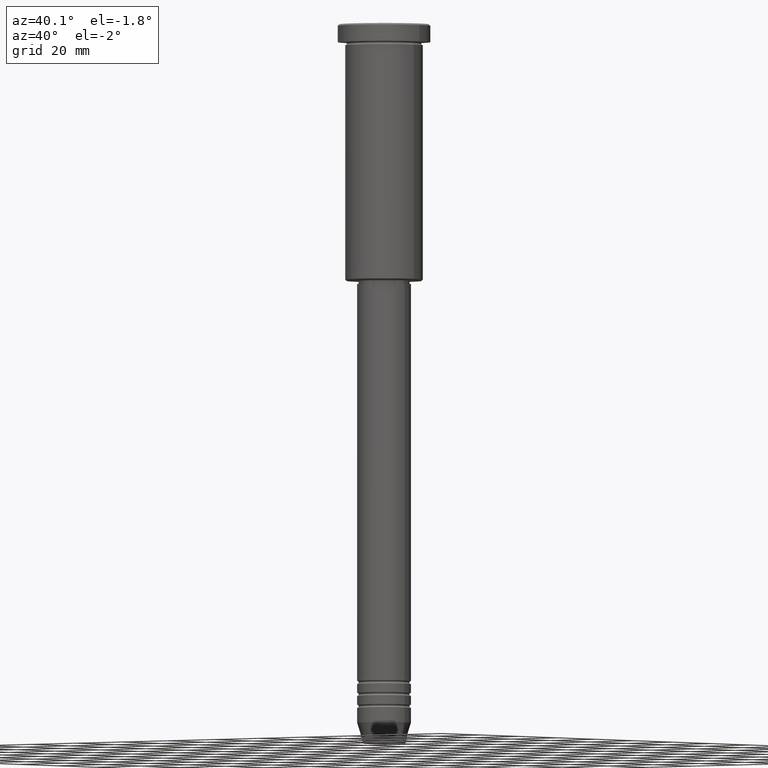
[diagram: clean part render]
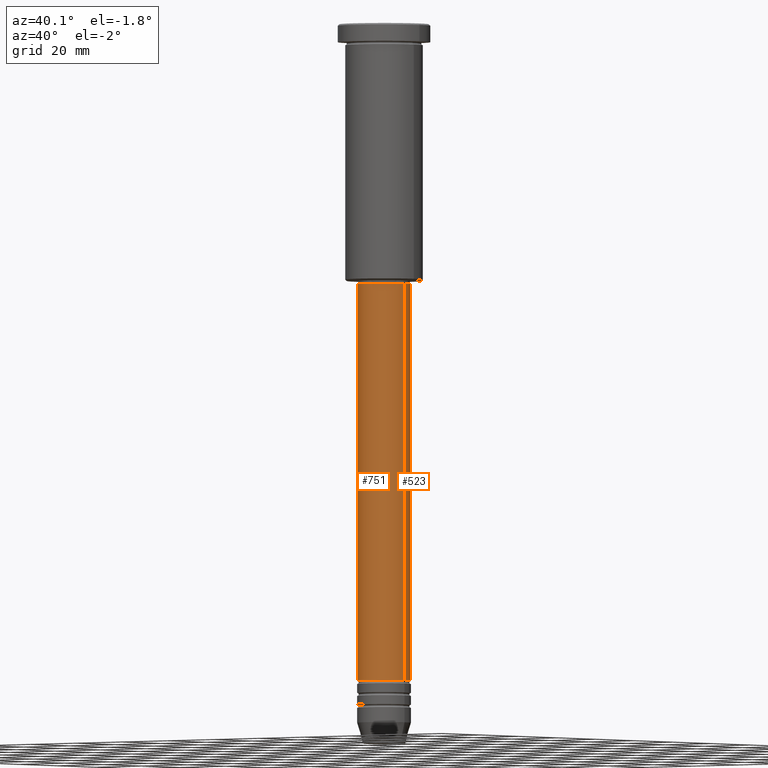
[diagram: same view with one multi-face feature highlighted, each face labeled with its STEP entity id]
A machine part, auxiliary view. The highlighted faces form ONE feature: a constant-radius fillet chain: 2 tangent blend faces with common blend radius 9 mm. The faces share edges in the B-rep.
Their STEP definitions:
[1] entity #523 (Cylinder):
#32 = DIRECTION ( 'NONE',  ( -0.000000000000000000, -0.000000000000000000, 1.000000000000000000 ) ) ;
#41 = VERTEX_POINT ( 'NONE', #276 ) ;
#57 = DIRECTION ( 'NONE',  ( 1.000000000000000000, 0.000000000000000000, 0.000000000000000000 ) ) ;
#146 = ORIENTED_EDGE ( 'NONE', *, *, #773, .T. ) ;
#157 = AXIS2_PLACEMENT_3D ( 'NONE', #580, #32, #57 ) ;
#164 = DIRECTION ( 'NONE',  ( 1.000000000000000000, 0.000000000000000000, 0.000000000000000000 ) ) ;
#175 = VECTOR ( 'NONE', #1123, 1000.000000000000000 ) ;
#183 = DIRECTION ( 'NONE',  ( -0.000000000000000000, -0.000000000000000000, 1.000000000000000000 ) ) ;
#211 = ORIENTED_EDGE ( 'NONE', *, *, #622, .F. ) ;
#244 = DIRECTION ( 'NONE',  ( -0.000000000000000000, -0.000000000000000000, 1.000000000000000000 ) ) ;
#256 = CARTESIAN_POINT ( 'NONE',  ( 8.999999999999998224, 0.000000000000000000, -87.00000000000002842 ) ) ;
#276 = CARTESIAN_POINT ( 'NONE',  ( -9.000000000000001776, 1.102182119232617911E-15, -219.9999999999998863 ) ) ;
#305 = CARTESIAN_POINT ( 'NONE',  ( 9.000000000000000000, 0.000000000000000000, 0.000000000000000000 ) ) ;
#367 = AXIS2_PLACEMENT_3D ( 'NONE', #829, #1097, #164 ) ;
#447 = CYLINDRICAL_SURFACE ( 'NONE', #1112, 9.000000000000000000 ) ;
#474 = ORIENTED_EDGE ( 'NONE', *, *, #855, .T. ) ;
#504 = LINE ( 'NONE', #305, #175 ) ;
#523 = ADVANCED_FACE ( 'NONE', ( #526 ), #447, .T. ) ;
#526 = FACE_OUTER_BOUND ( 'NONE', #963, .T. ) ;
#555 = VERTEX_POINT ( 'NONE', #557 ) ;
#557 = CARTESIAN_POINT ( 'NONE',  ( -8.999999999999998224, 1.102182119232617714E-15, -87.00000000000002842 ) ) ;
#580 = CARTESIAN_POINT ( 'NONE',  ( 0.000000000000000000, 0.000000000000000000, -87.00000000000002842 ) ) ;
#595 = EDGE_CURVE ( 'NONE', #757, #555, #938, .T. ) ;
#622 = EDGE_CURVE ( 'NONE', #725, #757, #504, .T. ) ;
#725 = VERTEX_POINT ( 'NONE', #868 ) ;
#757 = VERTEX_POINT ( 'NONE', #256 ) ;
#773 = EDGE_CURVE ( 'NONE', #41, #555, #1104, .T. ) ;
#805 = VECTOR ( 'NONE', #183, 1000.000000000000000 ) ;
#829 = CARTESIAN_POINT ( 'NONE',  ( 0.000000000000000000, 0.000000000000000000, -219.9999999999998863 ) ) ;
#855 = EDGE_CURVE ( 'NONE', #725, #41, #1113, .T. ) ;
#868 = CARTESIAN_POINT ( 'NONE',  ( 9.000000000000001776, 0.000000000000000000, -219.9999999999998863 ) ) ;
#891 = DIRECTION ( 'NONE',  ( 1.000000000000000000, 0.000000000000000000, 0.000000000000000000 ) ) ;
#938 = CIRCLE ( 'NONE', #157, 8.999999999999998224 ) ;
#963 = EDGE_LOOP ( 'NONE', ( #474, #146, #1011, #211 ) ) ;
#1011 = ORIENTED_EDGE ( 'NONE', *, *, #595, .F. ) ;
#1073 = CARTESIAN_POINT ( 'NONE',  ( 0.000000000000000000, 0.000000000000000000, 0.000000000000000000 ) ) ;
#1097 = DIRECTION ( 'NONE',  ( -0.000000000000000000, -0.000000000000000000, 1.000000000000000000 ) ) ;
#1101 = CARTESIAN_POINT ( 'NONE',  ( -9.000000000000000000, 1.102182119232617714E-15, 0.000000000000000000 ) ) ;
#1104 = LINE ( 'NONE', #1101, #805 ) ;
#1112 = AXIS2_PLACEMENT_3D ( 'NONE', #1073, #244, #891 ) ;
#1113 = CIRCLE ( 'NONE', #367, 9.000000000000001776 ) ;
#1123 = DIRECTION ( 'NONE',  ( -0.000000000000000000, -0.000000000000000000, 1.000000000000000000 ) ) ;
[2] entity #751 (Cylinder):
#9 = FACE_OUTER_BOUND ( 'NONE', #1041, .T. ) ;
#12 = AXIS2_PLACEMENT_3D ( 'NONE', #743, #186, #176 ) ;
#25 = CARTESIAN_POINT ( 'NONE',  ( 0.000000000000000000, 0.000000000000000000, -87.00000000000002842 ) ) ;
#41 = VERTEX_POINT ( 'NONE', #276 ) ;
#175 = VECTOR ( 'NONE', #1123, 1000.000000000000000 ) ;
#176 = DIRECTION ( 'NONE',  ( 1.000000000000000000, 0.000000000000000000, 0.000000000000000000 ) ) ;
#180 = EDGE_CURVE ( 'NONE', #555, #757, #203, .T. ) ;
#183 = DIRECTION ( 'NONE',  ( -0.000000000000000000, -0.000000000000000000, 1.000000000000000000 ) ) ;
#186 = DIRECTION ( 'NONE',  ( -0.000000000000000000, -0.000000000000000000, 1.000000000000000000 ) ) ;
#203 = CIRCLE ( 'NONE', #782, 8.999999999999998224 ) ;
#256 = CARTESIAN_POINT ( 'NONE',  ( 8.999999999999998224, 0.000000000000000000, -87.00000000000002842 ) ) ;
#276 = CARTESIAN_POINT ( 'NONE',  ( -9.000000000000001776, 1.102182119232617911E-15, -219.9999999999998863 ) ) ;
#302 = DIRECTION ( 'NONE',  ( 1.000000000000000000, 0.000000000000000000, 0.000000000000000000 ) ) ;
#305 = CARTESIAN_POINT ( 'NONE',  ( 9.000000000000000000, 0.000000000000000000, 0.000000000000000000 ) ) ;
#439 = ORIENTED_EDGE ( 'NONE', *, *, #809, .T. ) ;
#461 = CARTESIAN_POINT ( 'NONE',  ( 0.000000000000000000, 0.000000000000000000, 0.000000000000000000 ) ) ;
#504 = LINE ( 'NONE', #305, #175 ) ;
#543 = DIRECTION ( 'NONE',  ( 1.000000000000000000, 0.000000000000000000, 0.000000000000000000 ) ) ;
#555 = VERTEX_POINT ( 'NONE', #557 ) ;
#557 = CARTESIAN_POINT ( 'NONE',  ( -8.999999999999998224, 1.102182119232617714E-15, -87.00000000000002842 ) ) ;
#622 = EDGE_CURVE ( 'NONE', #725, #757, #504, .T. ) ;
#725 = VERTEX_POINT ( 'NONE', #868 ) ;
#743 = CARTESIAN_POINT ( 'NONE',  ( 0.000000000000000000, 0.000000000000000000, -219.9999999999998863 ) ) ;
#751 = ADVANCED_FACE ( 'NONE', ( #9 ), #1006, .T. ) ;
#757 = VERTEX_POINT ( 'NONE', #256 ) ;
#773 = EDGE_CURVE ( 'NONE', #41, #555, #1104, .T. ) ;
#782 = AXIS2_PLACEMENT_3D ( 'NONE', #25, #1033, #302 ) ;
#790 = ORIENTED_EDGE ( 'NONE', *, *, #180, .F. ) ;
#805 = VECTOR ( 'NONE', #183, 1000.000000000000000 ) ;
#809 = EDGE_CURVE ( 'NONE', #41, #725, #906, .T. ) ;
#868 = CARTESIAN_POINT ( 'NONE',  ( 9.000000000000001776, 0.000000000000000000, -219.9999999999998863 ) ) ;
#902 = DIRECTION ( 'NONE',  ( -0.000000000000000000, -0.000000000000000000, 1.000000000000000000 ) ) ;
#906 = CIRCLE ( 'NONE', #12, 9.000000000000001776 ) ;
#949 = ORIENTED_EDGE ( 'NONE', *, *, #622, .T. ) ;
#1006 = CYLINDRICAL_SURFACE ( 'NONE', #1172, 9.000000000000000000 ) ;
#1033 = DIRECTION ( 'NONE',  ( -0.000000000000000000, -0.000000000000000000, 1.000000000000000000 ) ) ;
#1041 = EDGE_LOOP ( 'NONE', ( #1051, #439, #949, #790 ) ) ;
#1051 = ORIENTED_EDGE ( 'NONE', *, *, #773, .F. ) ;
#1101 = CARTESIAN_POINT ( 'NONE',  ( -9.000000000000000000, 1.102182119232617714E-15, 0.000000000000000000 ) ) ;
#1104 = LINE ( 'NONE', #1101, #805 ) ;
#1123 = DIRECTION ( 'NONE',  ( -0.000000000000000000, -0.000000000000000000, 1.000000000000000000 ) ) ;
#1172 = AXIS2_PLACEMENT_3D ( 'NONE', #461, #902, #543 ) ;